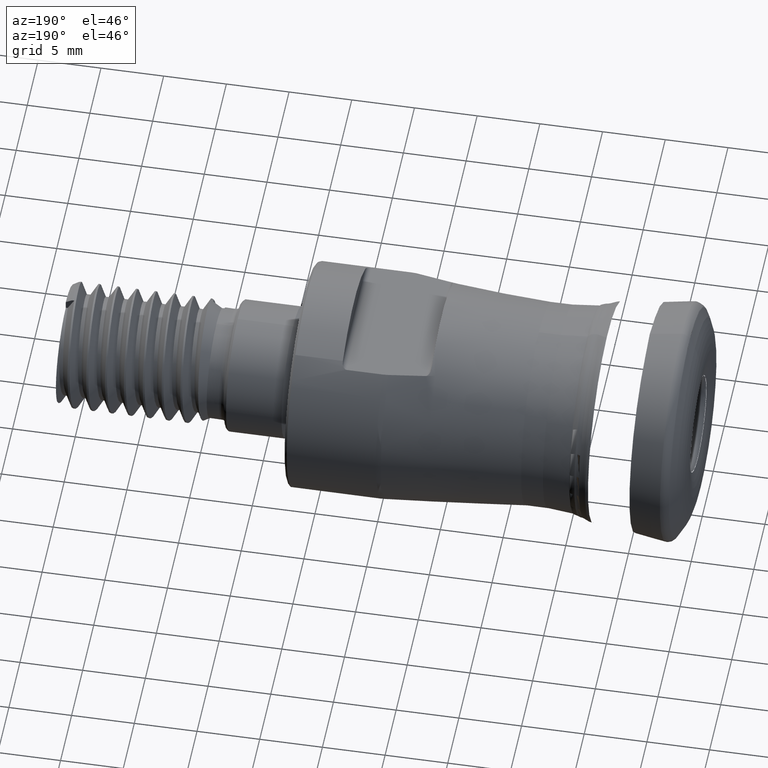
[diagram: clean part render]
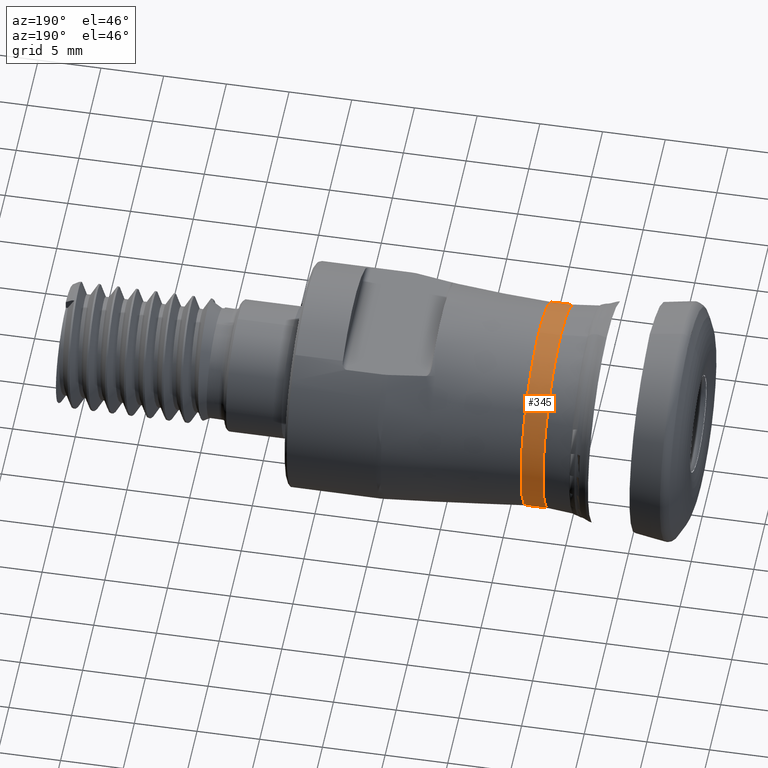
[diagram: same view with one face highlighted and labeled with its STEP entity id]
A machine part, auxiliary view. The second image highlights one B-rep face of the part: STEP entity #345.
In plain terms, the highlighted toroidal blend (fillet) surface has major radius 18.0381 mm and minor (blend) radius 10 mm.
Its self-contained STEP definition (entity closure, byte-faithful):
#174=TOROIDAL_SURFACE('',#1180,18.0380703233986,10.);
#345=ADVANCED_FACE('',(#443,#444),#174,.F.);
#443=FACE_BOUND('',#552,.T.);
#444=FACE_BOUND('',#553,.T.);
#552=EDGE_LOOP('',(#719));
#553=EDGE_LOOP('',(#720));
#719=ORIENTED_EDGE('',*,*,#972,.F.);
#720=ORIENTED_EDGE('',*,*,#955,.F.);
#863=VERTEX_POINT('',#1491);
#879=VERTEX_POINT('',#1621);
#955=EDGE_CURVE('',#863,#863,#1066,.T.);
#972=EDGE_CURVE('',#879,#879,#1073,.T.);
#1066=CIRCLE('',#1131,8.08040353321893);
#1073=CIRCLE('',#1139,8.07204704570617);
#1131=AXIS2_PLACEMENT_3D('',#1490,#1233,#1234);
#1139=AXIS2_PLACEMENT_3D('',#1620,#1249,#1250);
#1180=AXIS2_PLACEMENT_3D('',#2083,#1339,#1340);
#1233=DIRECTION('',(-1.,0.,0.));
#1234=DIRECTION('',(0.,0.,1.));
#1249=DIRECTION('',(1.,0.,0.));
#1250=DIRECTION('',(0.,0.,-1.));
#1339=DIRECTION('',(-1.,0.,0.));
#1340=DIRECTION('',(0.,0.,1.));
#1490=CARTESIAN_POINT('',(11.2789617234616,0.,0.));
#1491=CARTESIAN_POINT('',(11.2789617234616,0.,8.08040353321893));
#1620=CARTESIAN_POINT('',(13.0217692530447,0.,0.));
#1621=CARTESIAN_POINT('',(13.0217692530447,0.,-8.07204704570617));
#2083=CARTESIAN_POINT('',(12.1981309656321,0.,0.));